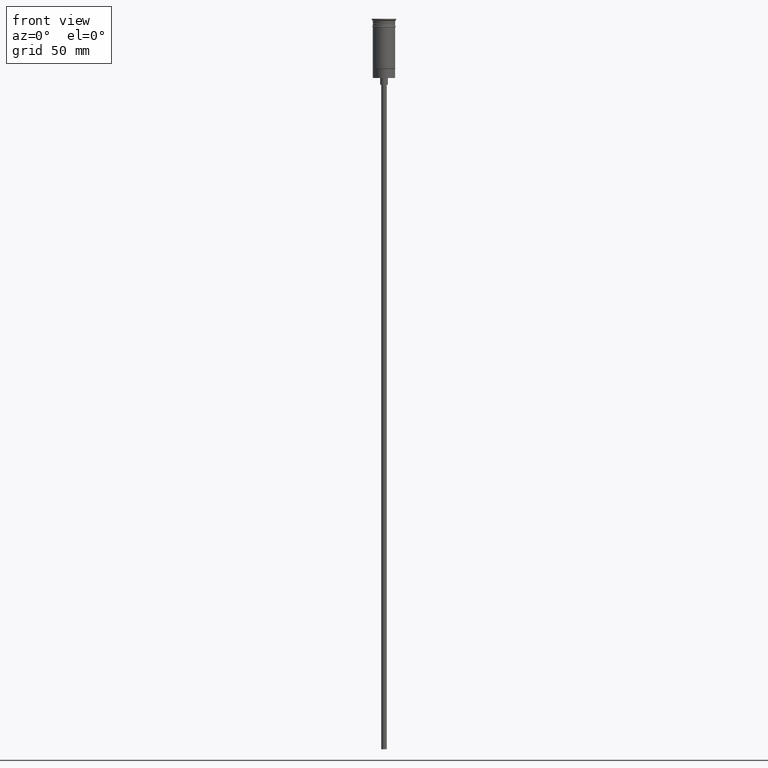
[diagram: clean part render]
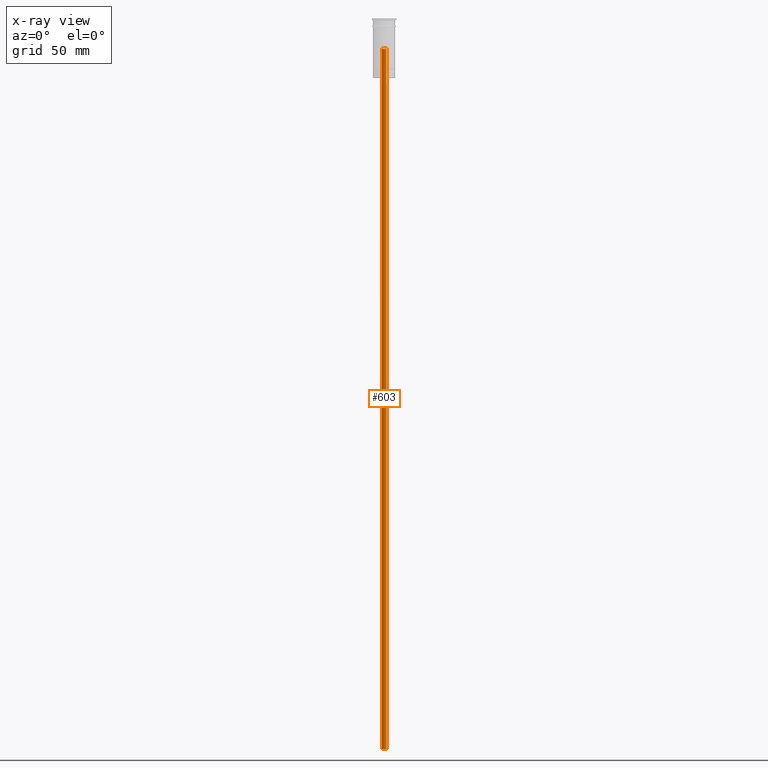
[diagram: x-ray — body ghosted, one internal face saturated and labeled with its STEP entity id]
A machine part, front view, then the same camera in x-ray: the body is ghosted and one INTERNAL B-rep face — a face not visible from any outside direction — is saturated and labeled: STEP entity #603.
In plain terms, the highlighted cylindrical surface (edge-blend (fillet) strip) has radius 1 mm, axis along (-0, -0, -1).
Its self-contained STEP definition (entity closure, byte-faithful):
#69 = CARTESIAN_POINT ( 'NONE',  ( 1.000000000000000000, 1.224646799147353207E-16, -10.67157287525383147 ) ) ;
#87 = VERTEX_POINT ( 'NONE', #860 ) ;
#147 = EDGE_LOOP ( 'NONE', ( #431, #906, #1041, #770 ) ) ;
#191 = DIRECTION ( 'NONE',  ( -0.000000000000000000, -0.000000000000000000, -1.000000000000000000 ) ) ;
#203 = CARTESIAN_POINT ( 'NONE',  ( -1.000000000000000000, 0.000000000000000000, -10.67157287525383147 ) ) ;
#269 = CARTESIAN_POINT ( 'NONE',  ( 1.000000000000000000, 1.224646799147353207E-16, -13.49999999999999822 ) ) ;
#272 = DIRECTION ( 'NONE',  ( -1.000000000000000000, 0.000000000000000000, 0.000000000000000000 ) ) ;
#320 = VERTEX_POINT ( 'NONE', #562 ) ;
#327 = LINE ( 'NONE', #203, #675 ) ;
#337 = DIRECTION ( 'NONE',  ( -0.000000000000000000, -0.000000000000000000, -1.000000000000000000 ) ) ;
#346 = EDGE_CURVE ( 'NONE', #1389, #413, #1315, .T. ) ;
#413 = VERTEX_POINT ( 'NONE', #1494 ) ;
#431 = ORIENTED_EDGE ( 'NONE', *, *, #346, .F. ) ;
#462 = CYLINDRICAL_SURFACE ( 'NONE', #1399, 1.000000000000000000 ) ;
#503 = DIRECTION ( 'NONE',  ( 0.000000000000000000, -1.000000000000000000, 0.000000000000000000 ) ) ;
#560 = EDGE_CURVE ( 'NONE', #87, #320, #957, .T. ) ;
#562 = CARTESIAN_POINT ( 'NONE',  ( -1.000000000000000000, 0.000000000000000000, -326.5000000000000000 ) ) ;
#603 = ADVANCED_FACE ( 'NONE', ( #1199 ), #462, .F. ) ;
#637 = EDGE_CURVE ( 'NONE', #1389, #87, #720, .T. ) ;
#639 = DIRECTION ( 'NONE',  ( -0.000000000000000000, -3.942553354492746489E-16, -1.000000000000000000 ) ) ;
#675 = VECTOR ( 'NONE', #337, 1000.000000000000000 ) ;
#720 = LINE ( 'NONE', #69, #1055 ) ;
#770 = ORIENTED_EDGE ( 'NONE', *, *, #1515, .F. ) ;
#839 = DIRECTION ( 'NONE',  ( -1.000000000000000000, 0.000000000000000000, 0.000000000000000000 ) ) ;
#860 = CARTESIAN_POINT ( 'NONE',  ( 1.000000000000000000, 1.224646799147353207E-16, -326.5000000000000000 ) ) ;
#892 = DIRECTION ( 'NONE',  ( 0.000000000000000000, 0.000000000000000000, -1.000000000000000000 ) ) ;
#906 = ORIENTED_EDGE ( 'NONE', *, *, #637, .T. ) ;
#945 = CARTESIAN_POINT ( 'NONE',  ( 0.000000000000000000, 0.000000000000000000, -10.67157287525383147 ) ) ;
#957 = CIRCLE ( 'NONE', #1128, 1.000000000000000000 ) ;
#991 = CARTESIAN_POINT ( 'NONE',  ( 0.000000000000000000, 0.000000000000000000, -13.49999999999999822 ) ) ;
#1041 = ORIENTED_EDGE ( 'NONE', *, *, #560, .T. ) ;
#1055 = VECTOR ( 'NONE', #1313, 1000.000000000000000 ) ;
#1128 = AXIS2_PLACEMENT_3D ( 'NONE', #1157, #892, #272 ) ;
#1157 = CARTESIAN_POINT ( 'NONE',  ( 0.000000000000000000, 0.000000000000000000, -326.5000000000000000 ) ) ;
#1199 = FACE_OUTER_BOUND ( 'NONE', #147, .T. ) ;
#1255 = AXIS2_PLACEMENT_3D ( 'NONE', #991, #639, #503 ) ;
#1313 = DIRECTION ( 'NONE',  ( -0.000000000000000000, -0.000000000000000000, -1.000000000000000000 ) ) ;
#1315 = CIRCLE ( 'NONE', #1255, 1.000000000000000000 ) ;
#1389 = VERTEX_POINT ( 'NONE', #269 ) ;
#1399 = AXIS2_PLACEMENT_3D ( 'NONE', #945, #191, #839 ) ;
#1494 = CARTESIAN_POINT ( 'NONE',  ( -1.000000000000000000, 0.000000000000000000, -13.49999999999999822 ) ) ;
#1515 = EDGE_CURVE ( 'NONE', #413, #320, #327, .T. ) ;